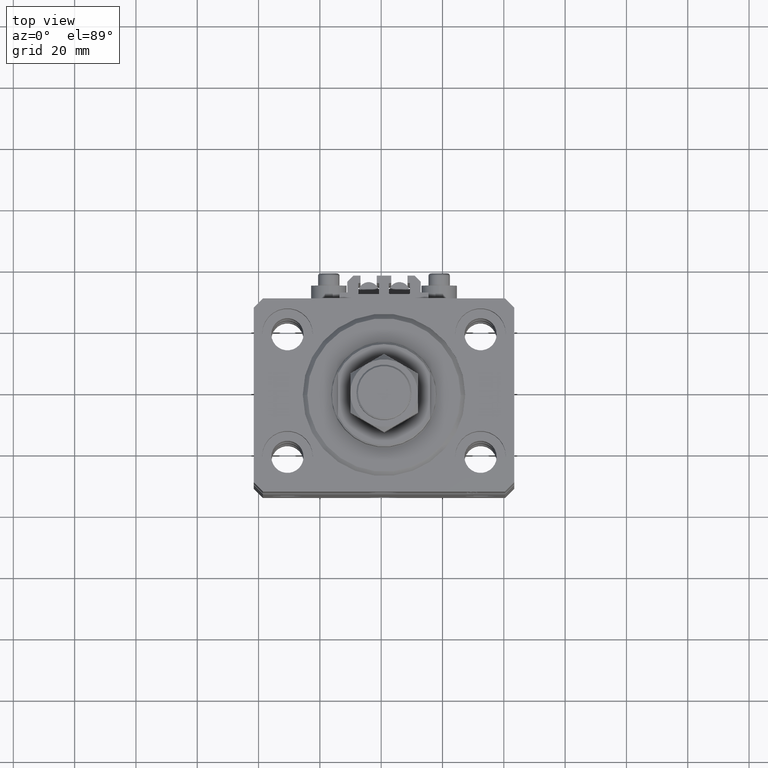
[diagram: clean part render]
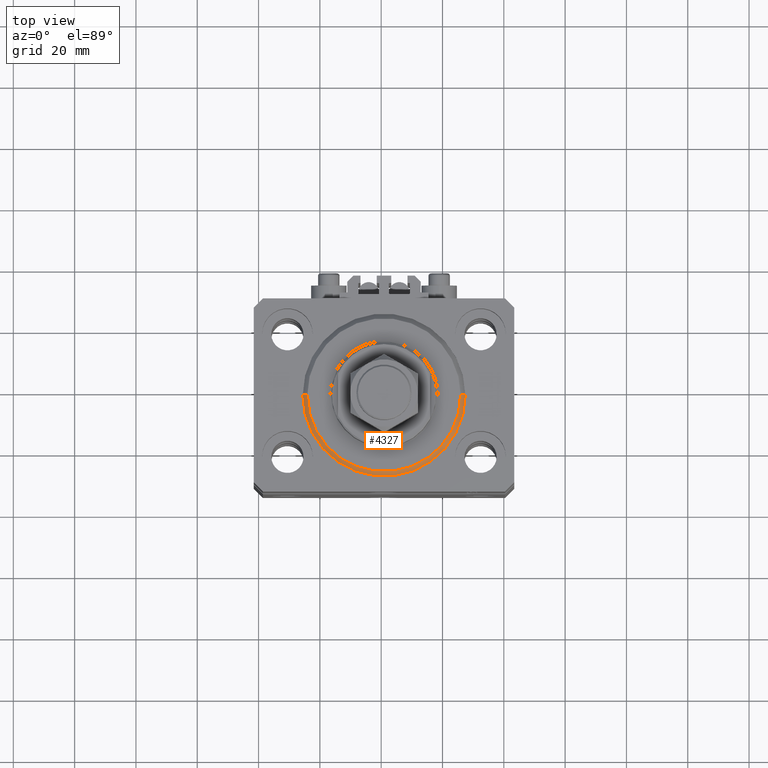
[diagram: same view with one face highlighted and labeled with its STEP entity id]
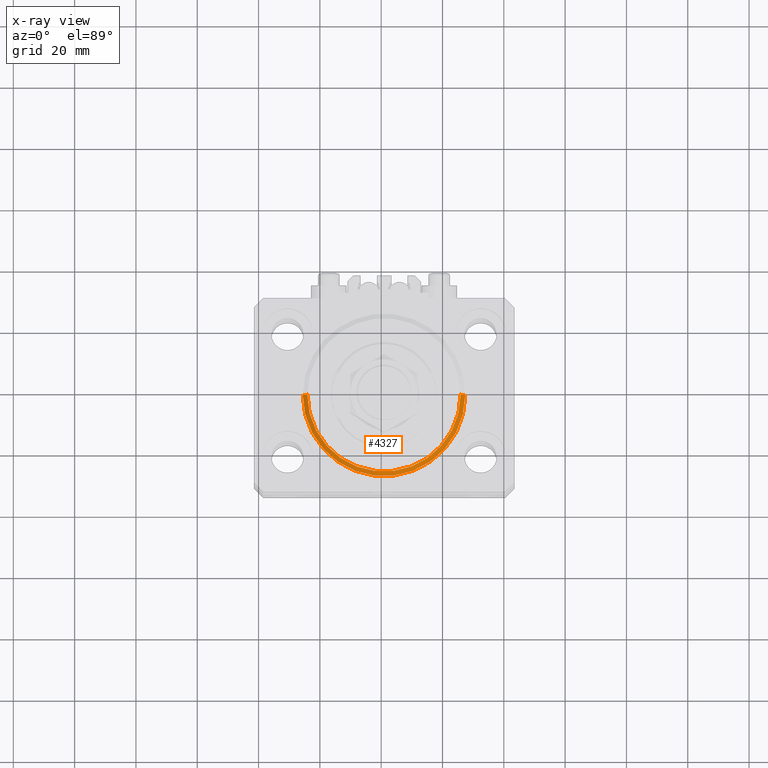
[diagram: x-ray of the same camera — body ghosted, the highlighted face saturated]
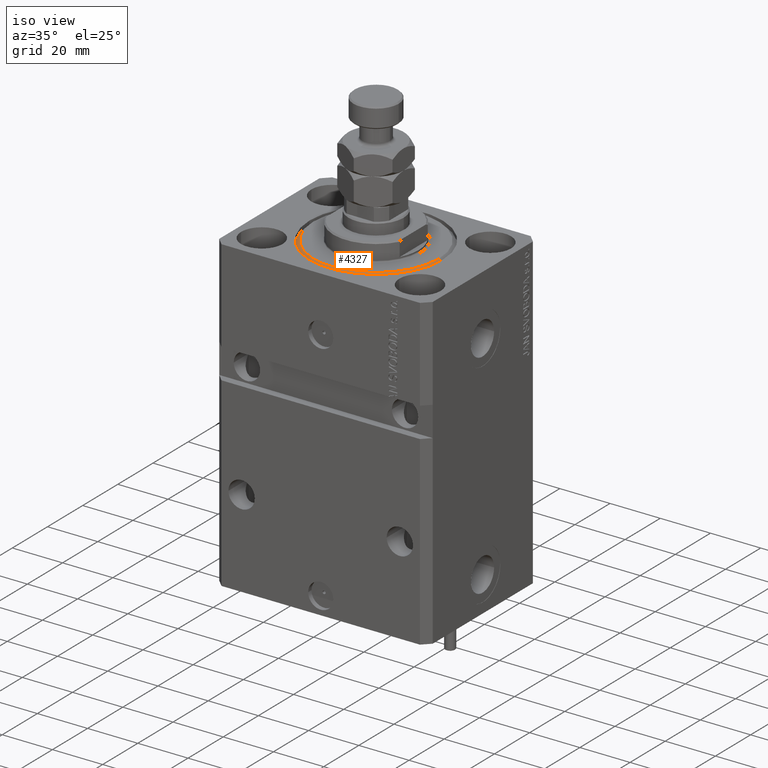
[diagram: same view with one face highlighted and labeled with its STEP entity id]
A machine part, top view. The second image highlights one B-rep face of the part: STEP entity #4327.
The next image is the same camera in x-ray: the body ghosted, the highlighted face saturated — about 0% of this face is hidden behind the body in this view.
A second angle (iso view) of the same face is appended — the face is thin or edge-on in the first view.
In plain terms, the highlighted conical surface has half-angle 45 deg.
Its self-contained STEP definition (entity closure, byte-faithful):
#1085 = VERTEX_POINT ( 'NONE', #2020 ) ;
#2020 = CARTESIAN_POINT ( 'NONE',  ( -26.50000000000000355, 0.000000000000000000, 1.500000000000018652 ) ) ;
#3214 = CARTESIAN_POINT ( 'NONE',  ( 24.99999999999998224, 0.000000000000000000, 0.000000000000000000 ) ) ;
#4327 = ADVANCED_FACE ( 'NONE', ( #32097 ), #22280, .T. ) ;
#6773 = VERTEX_POINT ( 'NONE', #12893 ) ;
#7550 = CARTESIAN_POINT ( 'NONE',  ( -24.99999999999998224, 3.153465507804433615E-15, 0.000000000000000000 ) ) ;
#8254 = EDGE_CURVE ( 'NONE', #1085, #6773, #32331, .T. ) ;
#8770 = CARTESIAN_POINT ( 'NONE',  ( 0.000000000000000000, 0.000000000000000000, 0.000000000000000000 ) ) ;
#9199 = CARTESIAN_POINT ( 'NONE',  ( -26.50000000000000355, 3.245314017740486554E-15, 1.500000000000018652 ) ) ;
#10850 = AXIS2_PLACEMENT_3D ( 'NONE', #30659, #14126, #26518 ) ;
#12893 = CARTESIAN_POINT ( 'NONE',  ( 26.50000000000000355, 3.245314017740486554E-15, 1.500000000000018652 ) ) ;
#13596 = DIRECTION ( 'NONE',  ( -0.7071067811865483499, 8.659560562354942719E-17, 0.7071067811865466846 ) ) ;
#14126 = DIRECTION ( 'NONE',  ( -0.000000000000000000, -0.000000000000000000, 1.000000000000000000 ) ) ;
#14653 = EDGE_CURVE ( 'NONE', #45842, #1085, #17989, .T. ) ;
#17968 = ORIENTED_EDGE ( 'NONE', *, *, #35120, .F. ) ;
#17989 = LINE ( 'NONE', #9199, #28336 ) ;
#18818 = EDGE_CURVE ( 'NONE', #37638, #6773, #47691, .T. ) ;
#19096 = VECTOR ( 'NONE', #27545, 1000.000000000000000 ) ;
#20727 = DIRECTION ( 'NONE',  ( 1.000000000000000000, 0.000000000000000000, 0.000000000000000000 ) ) ;
#22280 = CONICAL_SURFACE ( 'NONE', #51140, 26.50000000000000355, 0.7853981633974495002 ) ;
#26518 = DIRECTION ( 'NONE',  ( 1.000000000000000000, 0.000000000000000000, 0.000000000000000000 ) ) ;
#27521 = ORIENTED_EDGE ( 'NONE', *, *, #18818, .T. ) ;
#27545 = DIRECTION ( 'NONE',  ( 0.7071067811865483499, 0.000000000000000000, 0.7071067811865466846 ) ) ;
#28336 = VECTOR ( 'NONE', #13596, 1000.000000000000000 ) ;
#28370 = EDGE_LOOP ( 'NONE', ( #39744, #17968, #27521, #41260 ) ) ;
#28479 = DIRECTION ( 'NONE',  ( -0.000000000000000000, -0.000000000000000000, 1.000000000000000000 ) ) ;
#28956 = DIRECTION ( 'NONE',  ( -0.000000000000000000, -0.000000000000000000, -1.000000000000000000 ) ) ;
#30659 = CARTESIAN_POINT ( 'NONE',  ( 0.000000000000000000, 0.000000000000000000, 1.500000000000018652 ) ) ;
#31145 = CIRCLE ( 'NONE', #37763, 24.99999999999998224 ) ;
#32097 = FACE_OUTER_BOUND ( 'NONE', #28370, .T. ) ;
#32331 = CIRCLE ( 'NONE', #10850, 26.50000000000000355 ) ;
#35120 = EDGE_CURVE ( 'NONE', #37638, #45842, #31145, .T. ) ;
#37638 = VERTEX_POINT ( 'NONE', #3214 ) ;
#37763 = AXIS2_PLACEMENT_3D ( 'NONE', #8770, #28956, #40341 ) ;
#39744 = ORIENTED_EDGE ( 'NONE', *, *, #14653, .F. ) ;
#40341 = DIRECTION ( 'NONE',  ( 1.000000000000000000, 0.000000000000000000, 0.000000000000000000 ) ) ;
#41260 = ORIENTED_EDGE ( 'NONE', *, *, #8254, .F. ) ;
#42124 = CARTESIAN_POINT ( 'NONE',  ( 26.50000000000000355, 0.000000000000000000, 1.500000000000018652 ) ) ;
#44785 = CARTESIAN_POINT ( 'NONE',  ( 0.000000000000000000, 0.000000000000000000, 1.500000000000018652 ) ) ;
#45842 = VERTEX_POINT ( 'NONE', #7550 ) ;
#47691 = LINE ( 'NONE', #42124, #19096 ) ;
#51140 = AXIS2_PLACEMENT_3D ( 'NONE', #44785, #28479, #20727 ) ;